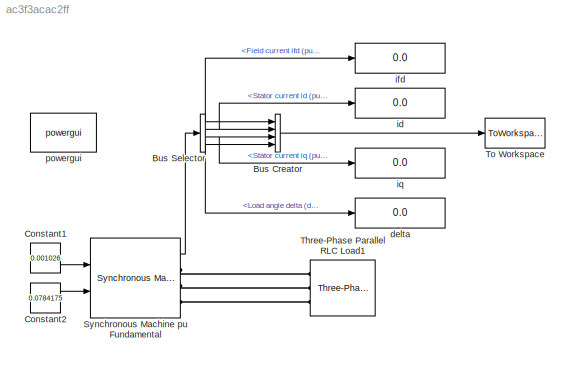
MODEL slx_ac3f3acac2ff
KIND model
BLOCK [BusCreator] Bus Creator
  DisplayOption = bar
  Ports = [4, 1]
BLOCK [BusSelector] Bus Selector
  OutputSignals = dq0 components.Field current  ifd (pu),dq0 components.Stator current  id (pu),dq0 components.Stator current  iq (pu),Load angle   delta  (deg)
  Ports = [1, 4]
BLOCK [Constant] Constant1
  Value = 0.001026
BLOCK [Constant] Constant2
  Value = 0.0784175
BLOCK [Reference] Synchronous Machine pu Fundamental  REF=powerlib/Machines/Synchronous Machine
pu Fundamental
  BusType = PV
  Dampers1 = [ 1.17E-02  0.182  1.97E-02  0.384 ]
  Dampers2 = [0.0652, 0.5134, 0.0287, 0.2553, 7.765e-3, 0.9167 ]
  Field = [ 0.0006  0.165]
  InitialConditions = [0 -89.0544 0.6 0.6 0.6 90 -30 -150 0.0784175]
  IterativeModel = Trapezoidal non iterative
  LoadFlowParameters = [2 0 0 0 0]
  MeasurementBus = off
  Mechanical = [ 3.7 0 20]
  MechanicalLoad = Mechanical power Pm
  NominalParameters = [100E6  11E3   50]
  PLF = 0
  PolePairs = 20
  Ports = [2, 1, 0, 0, 0, 0, 3]
  Pref = 0
  PresetModel = No
  QLF = 0
  Qmax = inf
  Qmin = -inf
  Qref = 0
  RotorType = Salient-pole
  Saturation = [0.6404,0.7127,0.8441,0.9214,0.9956,1.082,1.19,1.316,1.457;0.7,0.7698,0.8872,0.9466,0.9969,1.046,1.1,1.151,1.201]
  SetSaturation = off
  ShowDetailedParameters = on
  SourceBlock = powerlib/Machines/Synchronous Machine\npu Fundamental
  SourceType = Synchronous Machine
  Stator = [ 2.85E-03  0.15 1.3860  1.3440]
  TsBlock = -1
  TsPowergui = 0
  Units = per unit fundamental parameters
BLOCK [Reference] Three-Phase Parallel RLC Load1  REF=powerlib/Elements/Three-Phase
Parallel RLC Load
  ActivePower = 0
  AttributesFormatString = \n
  CapacitivePower = 60e6
  Configuration = Y (grounded)
  InductivePower = 0
  LConnTagsString = A|B|C
  LoadType = constant Z
  Measurements = None
  NominalFrequency = 50
  NominalVoltage = 11E3
  Ports = [0, 0, 0, 0, 0, 3]
  SourceBlock = powerlib/Elements/Three-Phase\nParallel RLC Load
  SourceType = Three-Phase Parallel RLC Load
BLOCK [ToWorkspace] To Workspace
  FixptAsFi = on
  MaxDataPoints = 1
  Ports = [1]
  SampleTime = -1
  Save2DSignal = 2-D array (concatenate along first dimension)
  VariableName = simout
BLOCK [Display] delta
  Decimation = 1
  Ports = [1]
BLOCK [Display] id
  Decimation = 1
  Ports = [1]
BLOCK [Display] ifd
  Decimation = 1
  Ports = [1]
BLOCK [Display] iq
  Decimation = 1
  Ports = [1]
BLOCK [Reference] powergui  REF=powerlib/powergui
  DisableRonSwitches = off
  DisableSnubberDevices = off
  DisableVfSwitches = off
  DisplayEquations = off
  DisplayStyle = 1
  EnableUseOfTLC = off
  ErrMax = 1e-4
  Frange = [0:2:500]
  FreqAxis = off
  FunctionMessages = off
  HookPort = off
  Interpol = off
  Iterations = 50
  MaxFrequency = 1000
  Pbase = 100e6
  Ports = []
  Priority = 1
  ResistiveCurrentMeasurement = off
  RestoreLinks = warning
  RmsSteady = 1
  SPID = off
  SampleTime = 50e-6
  ShowGrid = off
  SolverType = Tustin/Backward Euler (TBE)
  SourceBlock = powerlib/powergui
  SourceType = PSB option menu block
  StartTime = 0.0
  SwTol = 0
  Ts = 100
  UnitsV = V
  UnitsW = W
  UserDataPersistent = on
  Xlog = on
  Ylog = off
  ZoomFFT = off
  cycles = 1
  display = off
  echomessages = off
  frequency = 50
  frequencyindice = 50
  frequencyindicesteady = 1
  fundamental = 60
  methode = off
  save = off
  structure = 0
  variable = ZData
  x0status = blocks
LINE Bus Creator:1 -> To Workspace:1
NET Bus Selector:1 -> Bus Creator:1, ifd:1
NET Bus Selector:2 -> Bus Creator:2, id:1
NET Bus Selector:3 -> Bus Creator:3, iq:1
NET Bus Selector:4 -> Bus Creator:4, delta:1
LINE Constant1:1 -> Synchronous Machine pu Fundamental:1
LINE Constant2:1 -> Synchronous Machine pu Fundamental:2
LINE Synchronous Machine pu Fundamental:1 -> Bus Selector:1
PLINE Synchronous Machine pu Fundamental:RConn1 -- Three-Phase Parallel RLC Load1:LConn1
PLINE Synchronous Machine pu Fundamental:RConn2 -- Three-Phase Parallel RLC Load1:LConn2
PLINE Synchronous Machine pu Fundamental:RConn3 -- Three-Phase Parallel RLC Load1:LConn3
note: NET lines group one-source signal fan-out (src -> all destinations, sorted); 1:1 wires keep LINE
